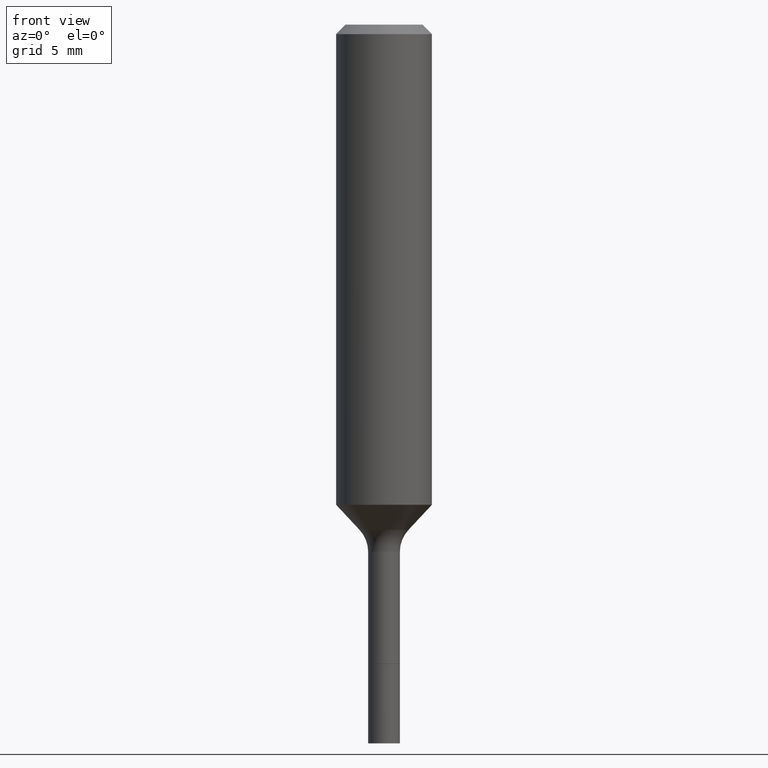
[diagram: clean part render]
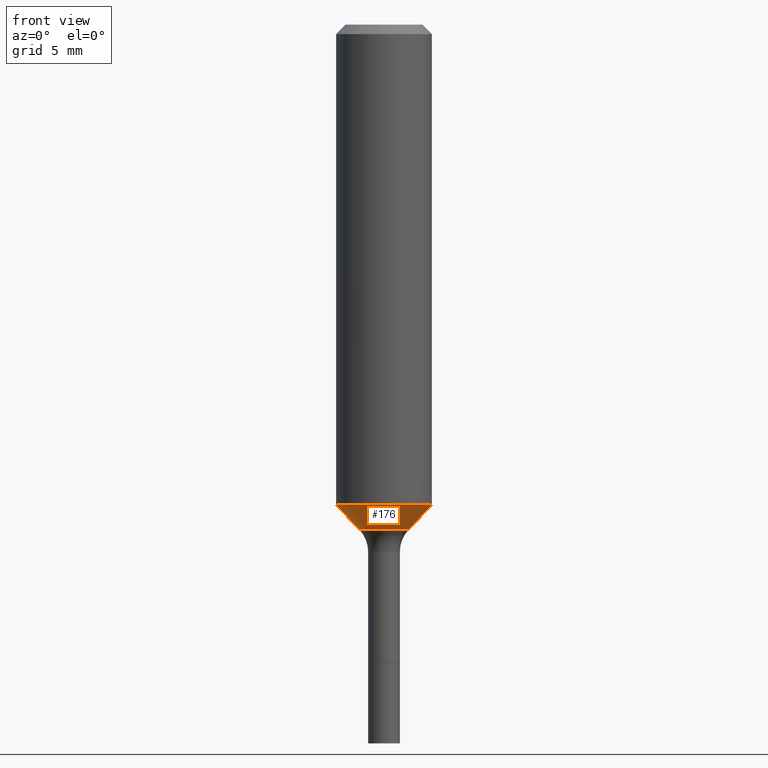
[diagram: same view with one face highlighted and labeled with its STEP entity id]
A machine part, front view. The second image highlights one B-rep face of the part: STEP entity #176.
In plain terms, the highlighted conical surface has half-angle 43 deg.
Its self-contained STEP definition (entity closure, byte-faithful):
#10 = DIRECTION ( 'NONE',  ( 0.6819983600624995868, -2.208861293262486847E-15, 0.7313537016191693496 ) ) ;
#17 = DIRECTION ( 'NONE',  ( 1.000000000000000000, -6.982962677686272233E-15, 0.000000000000000000 ) ) ;
#33 = EDGE_CURVE ( 'NONE', #362, #44, #45, .T. ) ;
#44 = VERTEX_POINT ( 'NONE', #330 ) ;
#45 = LINE ( 'NONE', #323, #115 ) ;
#60 = EDGE_CURVE ( 'NONE', #362, #404, #493, .T. ) ;
#84 = EDGE_CURVE ( 'NONE', #44, #247, #246, .T. ) ;
#111 = ORIENTED_EDGE ( 'NONE', *, *, #84, .F. ) ;
#115 = VECTOR ( 'NONE', #207, 39.37007874015748854 ) ;
#144 = DIRECTION ( 'NONE',  ( -2.445468806185136597E-29, 3.491481338843145583E-15, 1.000000000000000000 ) ) ;
#170 = AXIS2_PLACEMENT_3D ( 'NONE', #435, #505, #189 ) ;
#176 = ADVANCED_FACE ( 'NONE', ( #193 ), #353, .T. ) ;
#189 = DIRECTION ( 'NONE',  ( 1.000000000000000000, -6.982962677686272233E-15, 0.000000000000000000 ) ) ;
#192 = CARTESIAN_POINT ( 'NONE',  ( 0.1181000000000001493, -4.956564222766036883E-15, -1.183416415423353740 ) ) ;
#193 = FACE_OUTER_BOUND ( 'NONE', #513, .T. ) ;
#207 = DIRECTION ( 'NONE',  ( -0.6819983600624995868, 7.399397606724291309E-15, 0.7313537016191693496 ) ) ;
#216 = CARTESIAN_POINT ( 'NONE',  ( 3.044951350166641227E-29, -4.347383532312049754E-15, -1.245140131195000333 ) ) ;
#219 = LINE ( 'NONE', #376, #278 ) ;
#246 = CIRCLE ( 'NONE', #312, 0.1181000000000001493 ) ;
#247 = VERTEX_POINT ( 'NONE', #192 ) ;
#264 = CARTESIAN_POINT ( 'NONE',  ( -0.06054170387046639568, -3.917208853355059168E-15, -1.245140131195000333 ) ) ;
#277 = ORIENTED_EDGE ( 'NONE', *, *, #33, .F. ) ;
#278 = VECTOR ( 'NONE', #10, 39.37007874015748854 ) ;
#312 = AXIS2_PLACEMENT_3D ( 'NONE', #497, #518, #406 ) ;
#323 = CARTESIAN_POINT ( 'NONE',  ( -0.06054170387046642343, -3.917208853355059168E-15, -1.245140131195000333 ) ) ;
#330 = CARTESIAN_POINT ( 'NONE',  ( -0.1181000000000001493, -3.292725359598607662E-15, -1.183416415423353740 ) ) ;
#353 = CONICAL_SURFACE ( 'NONE', #170, 0.06054170387046642343, 0.7504915783575633048 ) ;
#362 = VERTEX_POINT ( 'NONE', #264 ) ;
#365 = ORIENTED_EDGE ( 'NONE', *, *, #60, .T. ) ;
#376 = CARTESIAN_POINT ( 'NONE',  ( 0.06054170387046642343, -4.770143990883050812E-15, -1.245140131195000333 ) ) ;
#388 = CARTESIAN_POINT ( 'NONE',  ( 0.06054170387046639568, -4.770143990883050023E-15, -1.245140131195000333 ) ) ;
#404 = VERTEX_POINT ( 'NONE', #388 ) ;
#406 = DIRECTION ( 'NONE',  ( 1.000000000000000000, -6.982962677686264344E-15, 0.000000000000000000 ) ) ;
#435 = CARTESIAN_POINT ( 'NONE',  ( 3.044951350166641227E-29, -4.347383532312049754E-15, -1.245140131195000333 ) ) ;
#445 = ORIENTED_EDGE ( 'NONE', *, *, #492, .T. ) ;
#485 = AXIS2_PLACEMENT_3D ( 'NONE', #216, #144, #17 ) ;
#492 = EDGE_CURVE ( 'NONE', #404, #247, #219, .T. ) ;
#493 = CIRCLE ( 'NONE', #485, 0.06054170387046642343 ) ;
#497 = CARTESIAN_POINT ( 'NONE',  ( 2.894007928645242123E-29, -4.131876330531287042E-15, -1.183416415423353740 ) ) ;
#505 = DIRECTION ( 'NONE',  ( -2.445468806185136597E-29, 3.491481338843145583E-15, 1.000000000000000000 ) ) ;
#513 = EDGE_LOOP ( 'NONE', ( #277, #365, #445, #111 ) ) ;
#518 = DIRECTION ( 'NONE',  ( -2.445468806185136597E-29, 3.491481338843145583E-15, 1.000000000000000000 ) ) ;